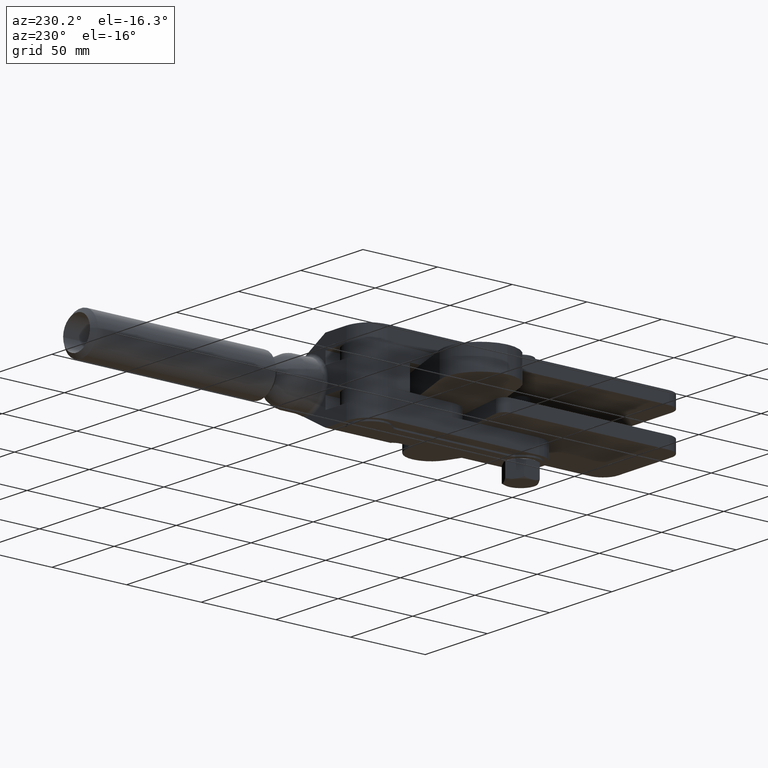
[diagram: clean part render]
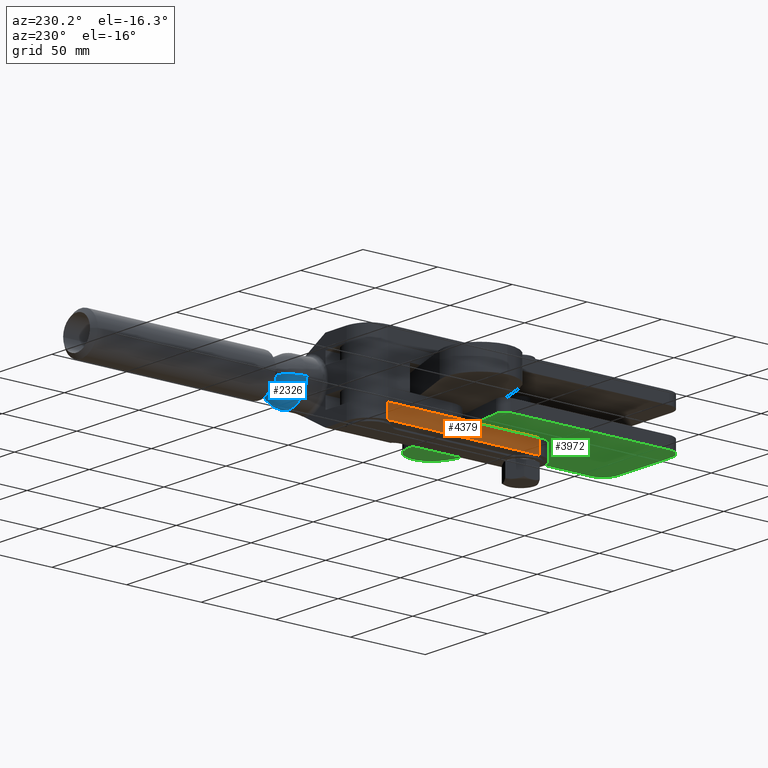
[diagram: same view with three faces highlighted in distinct colors, each labeled with its STEP entity id]
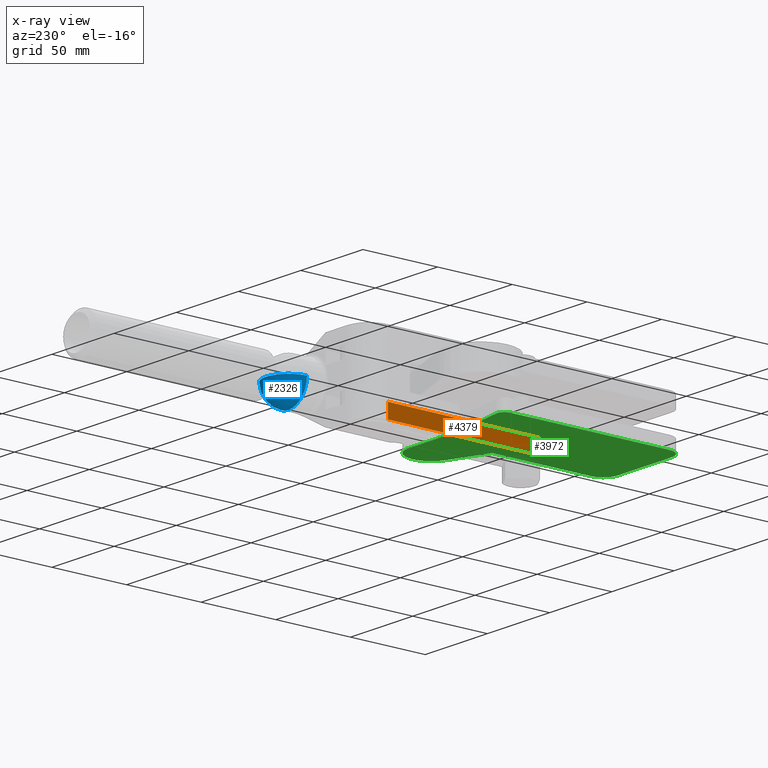
[diagram: x-ray of the same camera — body ghosted, the three highlighted faces saturated]
A machine part, auxiliary view with three faces highlighted in distinct colors.
The next image is the same camera in x-ray (body ghosted, the three faces saturated) — at least one of them is partly hidden behind the body in this view.
Their STEP definitions:

[orange] entity #4379 — the highlighted planar face has unit normal (-1, -0.0049, -0).
#185 = EDGE_CURVE ( 'NONE', #3310, #3549, #457, .T. ) ;
#326 = VECTOR ( 'NONE', #1187, 1000.000000000000000 ) ;
#404 = DIRECTION ( 'NONE',  ( 0.004921259842519730100, -0.9999878905274615100, 3.252190247955833100E-022 ) ) ;
#457 = LINE ( 'NONE', #3810, #326 ) ;
#464 = CARTESIAN_POINT ( 'NONE',  ( -172.9536095401702500, 152.4767764752161600, -26.09241626482723200 ) ) ;
#500 = ORIENTED_EDGE ( 'NONE', *, *, #5587, .T. ) ;
#973 = DIRECTION ( 'NONE',  ( 0.004921259842519730900, -0.9999878905274614000, 3.252190247955832200E-022 ) ) ;
#1187 = DIRECTION ( 'NONE',  ( -3.582142122470279100E-022, 3.234600765087460500E-022, 1.000000000000000000 ) ) ;
#1404 = VECTOR ( 'NONE', #973, 1000.000000000000100 ) ;
#1525 = CARTESIAN_POINT ( 'NONE',  ( -172.4536155949065200, 50.87923710513739900, -26.09241626482723200 ) ) ;
#1960 = EDGE_CURVE ( 'NONE', #5146, #3549, #3743, .T. ) ;
#1962 = ORIENTED_EDGE ( 'NONE', *, *, #4490, .F. ) ;
#2564 = PLANE ( 'NONE',  #3695 ) ;
#2568 = CARTESIAN_POINT ( 'NONE',  ( -172.4536155949065200, 50.87923710513739900, -16.59241626482723600 ) ) ;
#2572 = CARTESIAN_POINT ( 'NONE',  ( -172.4536155949065200, 50.87923710513741300, -26.09241626482723200 ) ) ;
#2657 = DIRECTION ( 'NONE',  ( -3.582142122470279100E-022, 3.234600765087460500E-022, 1.000000000000000000 ) ) ;
#3016 = DIRECTION ( 'NONE',  ( -0.9999878905274615100, -0.004921259842519730100, -3.566180433766808100E-022 ) ) ;
#3284 = LINE ( 'NONE', #3546, #5640 ) ;
#3310 = VERTEX_POINT ( 'NONE', #1525 ) ;
#3546 = CARTESIAN_POINT ( 'NONE',  ( -172.9536095401702500, 152.4767764752161600, -26.09241626482723200 ) ) ;
#3549 = VERTEX_POINT ( 'NONE', #2568 ) ;
#3695 = AXIS2_PLACEMENT_3D ( 'NONE', #5212, #3016, #404 ) ;
#3743 = LINE ( 'NONE', #3978, #1404 ) ;
#3810 = CARTESIAN_POINT ( 'NONE',  ( -172.4536155949065200, 50.87923710513741300, -26.09241626482723200 ) ) ;
#3902 = VERTEX_POINT ( 'NONE', #464 ) ;
#3971 = FACE_OUTER_BOUND ( 'NONE', #4846, .T. ) ;
#3978 = CARTESIAN_POINT ( 'NONE',  ( -172.8784594981271400, 137.2064728496193900, -16.59241626482723600 ) ) ;
#4020 = ORIENTED_EDGE ( 'NONE', *, *, #185, .T. ) ;
#4245 = VECTOR ( 'NONE', #5668, 1000.000000000000200 ) ;
#4379 = ADVANCED_FACE ( 'NONE', ( #3971 ), #2564, .T. ) ;
#4490 = EDGE_CURVE ( 'NONE', #3902, #5146, #3284, .T. ) ;
#4846 = EDGE_LOOP ( 'NONE', ( #5643, #1962, #500, #4020 ) ) ;
#4904 = CARTESIAN_POINT ( 'NONE',  ( -172.9536095401702500, 152.4767764752161600, -16.59241626482723600 ) ) ;
#5146 = VERTEX_POINT ( 'NONE', #4904 ) ;
#5212 = CARTESIAN_POINT ( 'NONE',  ( -172.4536155949065200, 50.87923710513741300, -26.09241626482723200 ) ) ;
#5434 = LINE ( 'NONE', #2572, #4245 ) ;
#5587 = EDGE_CURVE ( 'NONE', #3902, #3310, #5434, .T. ) ;
#5640 = VECTOR ( 'NONE', #2657, 1000.000000000000000 ) ;
#5643 = ORIENTED_EDGE ( 'NONE', *, *, #1960, .F. ) ;
#5668 = DIRECTION ( 'NONE',  ( 0.004921259842519730100, -0.9999878905274614000, 3.252190247955832600E-022 ) ) ;

[blue] entity #2326 — the highlighted spherical surface has radius 15 mm.
#138 = EDGE_LOOP ( 'NONE', ( #3908, #665, #1850 ) ) ;
#320 = DIRECTION ( 'NONE',  ( 1.000000000000000000, 0.0000000000000000000, 1.228762462150250800E-016 ) ) ;
#408 = CARTESIAN_POINT ( 'NONE',  ( -125.9537911822583000, 179.9505953728575800, -0.5924162648272366400 ) ) ;
#546 = VERTEX_POINT ( 'NONE', #4852 ) ;
#657 = FACE_OUTER_BOUND ( 'NONE', #138, .T. ) ;
#665 = ORIENTED_EDGE ( 'NONE', *, *, #915, .T. ) ;
#831 = CIRCLE ( 'NONE', #2882, 14.99999999999984700 ) ;
#837 = DIRECTION ( 'NONE',  ( -1.000000000000000000, -1.850371707708612900E-015, 0.0000000000000000000 ) ) ;
#915 = EDGE_CURVE ( 'NONE', #546, #4684, #2858, .T. ) ;
#1328 = AXIS2_PLACEMENT_3D ( 'NONE', #408, #3454, #837 ) ;
#1447 = CARTESIAN_POINT ( 'NONE',  ( -125.9537911822583000, 179.9505953728539400, -0.5924162648272366400 ) ) ;
#1594 = CIRCLE ( 'NONE', #4609, 14.99999999999984700 ) ;
#1850 = ORIENTED_EDGE ( 'NONE', *, *, #3775, .T. ) ;
#1858 = CARTESIAN_POINT ( 'NONE',  ( -125.9537911822583300, 194.9505953728537700, -0.5924162648272366400 ) ) ;
#1885 = DIRECTION ( 'NONE',  ( -1.000000000000000000, 0.0000000000000000000, 0.0000000000000000000 ) ) ;
#1949 = CARTESIAN_POINT ( 'NONE',  ( -125.9537911822583000, 179.9505953728539400, -0.5924162648272366400 ) ) ;
#2086 = VERTEX_POINT ( 'NONE', #1858 ) ;
#2301 = AXIS2_PLACEMENT_3D ( 'NONE', #1949, #2819, #3365 ) ;
#2326 = ADVANCED_FACE ( 'NONE', ( #657 ), #4150, .T. ) ;
#2819 = DIRECTION ( 'NONE',  ( -5.985213741450483800E-037, 3.234600765087467100E-022, 1.000000000000000000 ) ) ;
#2858 = CIRCLE ( 'NONE', #1328, 14.99999999999984700 ) ;
#2882 = AXIS2_PLACEMENT_3D ( 'NONE', #5588, #2934, #320 ) ;
#2934 = DIRECTION ( 'NONE',  ( -1.224650381289475900E-016, 3.234600762262255300E-022, 1.000000000000000000 ) ) ;
#3365 = DIRECTION ( 'NONE',  ( -1.000000000000000000, -1.850371707708613300E-015, 0.0000000000000000000 ) ) ;
#3454 = DIRECTION ( 'NONE',  ( -2.306954303176414100E-015, 1.000000000000000000, -3.234600765087467100E-022 ) ) ;
#3775 = EDGE_CURVE ( 'NONE', #4684, #2086, #1594, .T. ) ;
#3908 = ORIENTED_EDGE ( 'NONE', *, *, #4850, .F. ) ;
#4150 = SPHERICAL_SURFACE ( 'NONE', #2301, 14.99999999999984400 ) ;
#4513 = DIRECTION ( 'NONE',  ( 3.582142122470277700E-022, -3.234600765087459100E-022, -1.000000000000000000 ) ) ;
#4609 = AXIS2_PLACEMENT_3D ( 'NONE', #1447, #4513, #1885 ) ;
#4684 = VERTEX_POINT ( 'NONE', #5450 ) ;
#4850 = EDGE_CURVE ( 'NONE', #546, #2086, #831, .T. ) ;
#4852 = CARTESIAN_POINT ( 'NONE',  ( -110.9537911822584600, 179.9505953728576100, -0.5924162648272348600 ) ) ;
#5450 = CARTESIAN_POINT ( 'NONE',  ( -140.9537911822581600, 179.9505953728575500, -0.5924162648272366400 ) ) ;
#5588 = CARTESIAN_POINT ( 'NONE',  ( -125.9537911822583000, 179.9505953728539400, -0.5924162648272366400 ) ) ;

[green] entity #3972 — the highlighted planar face has unit normal (0, 0, 1).
#5 = DIRECTION ( 'NONE',  ( 1.000000000000000000, 0.0000000000000000000, 0.0000000000000000000 ) ) ;
#129 = EDGE_CURVE ( 'NONE', #5551, #921, #1475, .T. ) ;
#151 = CARTESIAN_POINT ( 'NONE',  ( -109.4562742597662300, 60.99433127077763600, -16.59241626482724300 ) ) ;
#178 = ORIENTED_EDGE ( 'NONE', *, *, #270, .T. ) ;
#231 = EDGE_CURVE ( 'NONE', #921, #634, #5618, .T. ) ;
#270 = EDGE_CURVE ( 'NONE', #2057, #3801, #2365, .T. ) ;
#407 = CIRCLE ( 'NONE', #1621, 4.999999999999976900 ) ;
#416 = AXIS2_PLACEMENT_3D ( 'NONE', #1970, #5039, #2407 ) ;
#501 = PLANE ( 'NONE',  #5094 ) ;
#588 = CIRCLE ( 'NONE', #416, 5.000000000000004400 ) ;
#627 = CARTESIAN_POINT ( 'NONE',  ( -162.9537911822582100, 50.95059537285428800, -16.59241626482724300 ) ) ;
#634 = VERTEX_POINT ( 'NONE', #5019 ) ;
#714 = CARTESIAN_POINT ( 'NONE',  ( -187.9537911822581900, -15.04940462714568600, -16.59241626482724300 ) ) ;
#782 = ORIENTED_EDGE ( 'NONE', *, *, #2599, .F. ) ;
#835 = AXIS2_PLACEMENT_3D ( 'NONE', #714, #3772, #1159 ) ;
#921 = VERTEX_POINT ( 'NONE', #1280 ) ;
#936 = DIRECTION ( 'NONE',  ( 0.0000000000000000000, 0.0000000000000000000, 1.000000000000000000 ) ) ;
#946 = EDGE_CURVE ( 'NONE', #4775, #3655, #407, .T. ) ;
#966 = CIRCLE ( 'NONE', #835, 10.00000000000000900 ) ;
#991 = LINE ( 'NONE', #2255, #2013 ) ;
#1028 = AXIS2_PLACEMENT_3D ( 'NONE', #1994, #4617, #1553 ) ;
#1043 = DIRECTION ( 'NONE',  ( 0.0000000000000000000, 0.0000000000000000000, 1.000000000000000000 ) ) ;
#1076 = DIRECTION ( 'NONE',  ( 0.0000000000000000000, -1.000000000000000000, 0.0000000000000000000 ) ) ;
#1114 = CARTESIAN_POINT ( 'NONE',  ( -192.0855502939235700, 95.96894540328287300, -16.59241626482724300 ) ) ;
#1148 = ORIENTED_EDGE ( 'NONE', *, *, #5298, .F. ) ;
#1159 = DIRECTION ( 'NONE',  ( 1.000000000000000000, 0.0000000000000000000, 0.0000000000000000000 ) ) ;
#1165 = CARTESIAN_POINT ( 'NONE',  ( -114.9537911822581300, 89.95059537285432300, -16.59241626482724300 ) ) ;
#1280 = CARTESIAN_POINT ( 'NONE',  ( -134.9537911822581300, -15.04940462714568600, -16.59241626482724300 ) ) ;
#1405 = VECTOR ( 'NONE', #3202, 1000.000000000000100 ) ;
#1409 = ORIENTED_EDGE ( 'NONE', *, *, #3732, .F. ) ;
#1457 = CARTESIAN_POINT ( 'NONE',  ( -152.9537911822582100, 50.95059537285428800, -16.59241626482724300 ) ) ;
#1475 = CIRCLE ( 'NONE', #2585, 10.00000000000003700 ) ;
#1529 = FACE_BOUND ( 'NONE', #3323, .T. ) ;
#1553 = DIRECTION ( 'NONE',  ( 1.000000000000000000, 0.0000000000000000000, 0.0000000000000000000 ) ) ;
#1621 = AXIS2_PLACEMENT_3D ( 'NONE', #5248, #2603, #5 ) ;
#1679 = CARTESIAN_POINT ( 'NONE',  ( -144.9537911822581900, -25.04940462714569400, -16.59241626482724300 ) ) ;
#1829 = ORIENTED_EDGE ( 'NONE', *, *, #4269, .F. ) ;
#1970 = CARTESIAN_POINT ( 'NONE',  ( -157.9537911822582100, 50.95059537285428800, -16.59241626482724300 ) ) ;
#1994 = CARTESIAN_POINT ( 'NONE',  ( -157.9537911822582100, 50.95059537285428800, -16.59241626482724300 ) ) ;
#2013 = VECTOR ( 'NONE', #5358, 1000.000000000000000 ) ;
#2057 = VERTEX_POINT ( 'NONE', #627 ) ;
#2156 = EDGE_LOOP ( 'NONE', ( #3470, #4221, #2184, #4519, #1409, #4612, #1148, #3593, #782, #1829 ) ) ;
#2167 = VERTEX_POINT ( 'NONE', #2824 ) ;
#2184 = ORIENTED_EDGE ( 'NONE', *, *, #231, .F. ) ;
#2255 = CARTESIAN_POINT ( 'NONE',  ( -187.9537911822581900, -25.04940462714569400, -16.59241626482724300 ) ) ;
#2293 = CARTESIAN_POINT ( 'NONE',  ( -114.9537911822581300, 89.95059537285432300, -16.59241626482724300 ) ) ;
#2313 = VECTOR ( 'NONE', #3806, 1000.000000000000100 ) ;
#2365 = CIRCLE ( 'NONE', #1028, 5.000000000000004400 ) ;
#2373 = CARTESIAN_POINT ( 'NONE',  ( -197.9537911822581900, 91.04490663822190300, -16.59241626482724300 ) ) ;
#2407 = DIRECTION ( 'NONE',  ( 1.000000000000000000, 0.0000000000000000000, 0.0000000000000000000 ) ) ;
#2534 = DIRECTION ( 'NONE',  ( 1.000000000000000000, 0.0000000000000000000, 0.0000000000000000000 ) ) ;
#2545 = FACE_OUTER_BOUND ( 'NONE', #2156, .T. ) ;
#2585 = AXIS2_PLACEMENT_3D ( 'NONE', #2982, #5637, #2534 ) ;
#2599 = EDGE_CURVE ( 'NONE', #4225, #4775, #2706, .T. ) ;
#2603 = DIRECTION ( 'NONE',  ( 0.0000000000000000000, 0.0000000000000000000, 1.000000000000000000 ) ) ;
#2706 = LINE ( 'NONE', #4106, #1405 ) ;
#2824 = CARTESIAN_POINT ( 'NONE',  ( -187.9537911822581900, -25.04940462714569400, -16.59241626482724300 ) ) ;
#2922 = DIRECTION ( 'NONE',  ( -1.000000000000000000, -1.290957005378091300E-015, 0.0000000000000000000 ) ) ;
#2982 = CARTESIAN_POINT ( 'NONE',  ( -144.9537911822581900, -15.04940462714568600, -16.59241626482724300 ) ) ;
#3202 = DIRECTION ( 'NONE',  ( -0.9848077530122081300, 0.1736481776669300500, 0.0000000000000000000 ) ) ;
#3286 = VECTOR ( 'NONE', #1076, 1000.000000000000000 ) ;
#3304 = EDGE_CURVE ( 'NONE', #3801, #2057, #588, .T. ) ;
#3323 = EDGE_LOOP ( 'NONE', ( #178, #3833 ) ) ;
#3470 = ORIENTED_EDGE ( 'NONE', *, *, #4667, .F. ) ;
#3593 = ORIENTED_EDGE ( 'NONE', *, *, #946, .F. ) ;
#3655 = VERTEX_POINT ( 'NONE', #5302 ) ;
#3660 = CARTESIAN_POINT ( 'NONE',  ( -114.9537911822581300, 74.95059537285430900, -16.59241626482724300 ) ) ;
#3732 = EDGE_CURVE ( 'NONE', #2167, #5551, #991, .T. ) ;
#3762 = CIRCLE ( 'NONE', #4175, 14.99999999999998600 ) ;
#3766 = CARTESIAN_POINT ( 'NONE',  ( -157.9537911822580400, 89.95059537285426600, -16.59241626482724300 ) ) ;
#3770 = CARTESIAN_POINT ( 'NONE',  ( -134.9537911822581300, 50.95059537285428800, -16.59241626482724300 ) ) ;
#3772 = DIRECTION ( 'NONE',  ( 0.0000000000000000000, 0.0000000000000000000, 1.000000000000000000 ) ) ;
#3785 = VERTEX_POINT ( 'NONE', #4955 ) ;
#3801 = VERTEX_POINT ( 'NONE', #1457 ) ;
#3806 = DIRECTION ( 'NONE',  ( 0.9304176068051108800, 0.3665011281661356100, 0.0000000000000000000 ) ) ;
#3833 = ORIENTED_EDGE ( 'NONE', *, *, #3304, .T. ) ;
#3972 = ADVANCED_FACE ( 'NONE', ( #1529, #2545 ), #501, .F. ) ;
#3996 = DIRECTION ( 'NONE',  ( 1.000000000000000000, 0.0000000000000000000, -0.0000000000000000000 ) ) ;
#4106 = CARTESIAN_POINT ( 'NONE',  ( -157.9537911822580400, 89.95059537285426600, -16.59241626482724300 ) ) ;
#4109 = DIRECTION ( 'NONE',  ( 1.000000000000000000, 0.0000000000000000000, 0.0000000000000000000 ) ) ;
#4175 = AXIS2_PLACEMENT_3D ( 'NONE', #3660, #1043, #4109 ) ;
#4221 = ORIENTED_EDGE ( 'NONE', *, *, #5459, .F. ) ;
#4225 = VERTEX_POINT ( 'NONE', #3766 ) ;
#4234 = CARTESIAN_POINT ( 'NONE',  ( -134.9537911822581300, 50.95059537285428800, -16.59241626482724300 ) ) ;
#4250 = VECTOR ( 'NONE', #2922, 1000.000000000000000 ) ;
#4269 = EDGE_CURVE ( 'NONE', #4599, #4225, #5438, .T. ) ;
#4425 = VECTOR ( 'NONE', #5544, 1000.000000000000000 ) ;
#4450 = LINE ( 'NONE', #2373, #3286 ) ;
#4519 = ORIENTED_EDGE ( 'NONE', *, *, #129, .F. ) ;
#4599 = VERTEX_POINT ( 'NONE', #2293 ) ;
#4612 = ORIENTED_EDGE ( 'NONE', *, *, #4800, .F. ) ;
#4617 = DIRECTION ( 'NONE',  ( 0.0000000000000000000, 0.0000000000000000000, 1.000000000000000000 ) ) ;
#4626 = VERTEX_POINT ( 'NONE', #151 ) ;
#4659 = LINE ( 'NONE', #4234, #2313 ) ;
#4667 = EDGE_CURVE ( 'NONE', #4626, #4599, #3762, .T. ) ;
#4775 = VERTEX_POINT ( 'NONE', #1114 ) ;
#4800 = EDGE_CURVE ( 'NONE', #3785, #2167, #966, .T. ) ;
#4864 = CARTESIAN_POINT ( 'NONE',  ( -114.9537911822581300, 74.95059537285430900, -16.59241626482724300 ) ) ;
#4955 = CARTESIAN_POINT ( 'NONE',  ( -197.9537911822581900, -15.04940462714568600, -16.59241626482724300 ) ) ;
#5019 = CARTESIAN_POINT ( 'NONE',  ( -134.9537911822581300, 50.95059537285428800, -16.59241626482724300 ) ) ;
#5039 = DIRECTION ( 'NONE',  ( 0.0000000000000000000, 0.0000000000000000000, 1.000000000000000000 ) ) ;
#5094 = AXIS2_PLACEMENT_3D ( 'NONE', #4864, #936, #3996 ) ;
#5248 = CARTESIAN_POINT ( 'NONE',  ( -192.9537911822581900, 91.04490663822190300, -16.59241626482724300 ) ) ;
#5298 = EDGE_CURVE ( 'NONE', #3655, #3785, #4450, .T. ) ;
#5302 = CARTESIAN_POINT ( 'NONE',  ( -197.9537911822581600, 91.04490663822190300, -16.59241626482724300 ) ) ;
#5358 = DIRECTION ( 'NONE',  ( 1.000000000000000000, 0.0000000000000000000, 0.0000000000000000000 ) ) ;
#5438 = LINE ( 'NONE', #1165, #4250 ) ;
#5459 = EDGE_CURVE ( 'NONE', #634, #4626, #4659, .T. ) ;
#5544 = DIRECTION ( 'NONE',  ( -0.0000000000000000000, 1.000000000000000000, -0.0000000000000000000 ) ) ;
#5551 = VERTEX_POINT ( 'NONE', #1679 ) ;
#5618 = LINE ( 'NONE', #3770, #4425 ) ;
#5637 = DIRECTION ( 'NONE',  ( 0.0000000000000000000, 0.0000000000000000000, 1.000000000000000000 ) ) ;